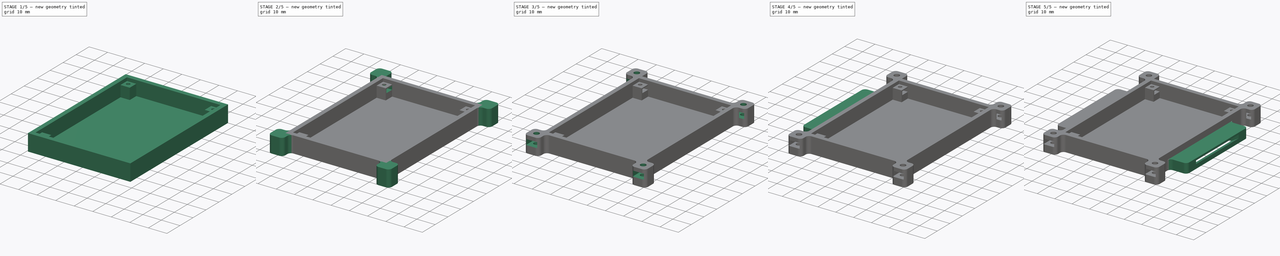
[diagram: build sequence overview — one tinted view per stage of 5, left to right]
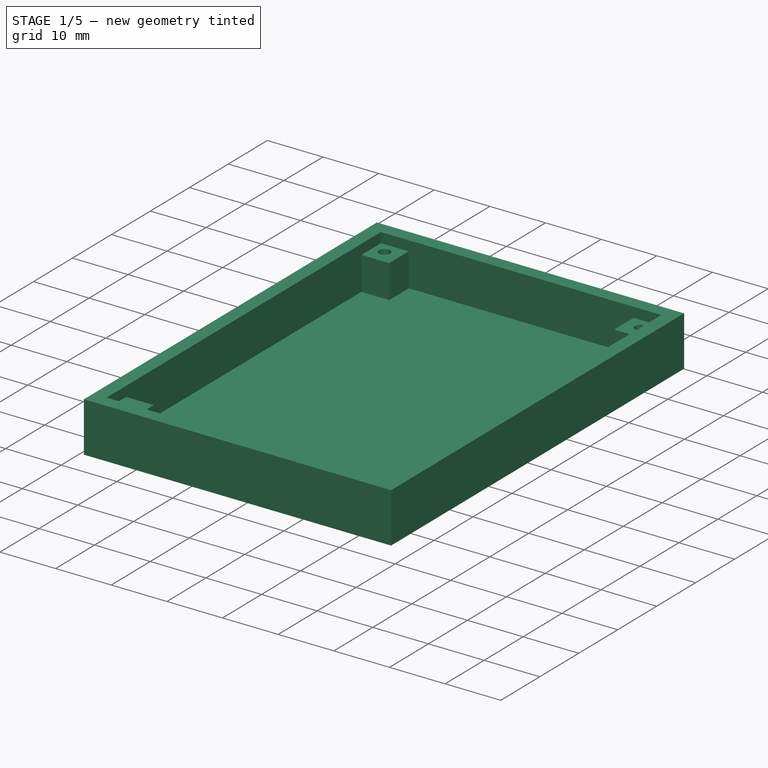
[diagram: stage 1 of 5 — iso view after this stage's code; geometry added in this stage tinted green]
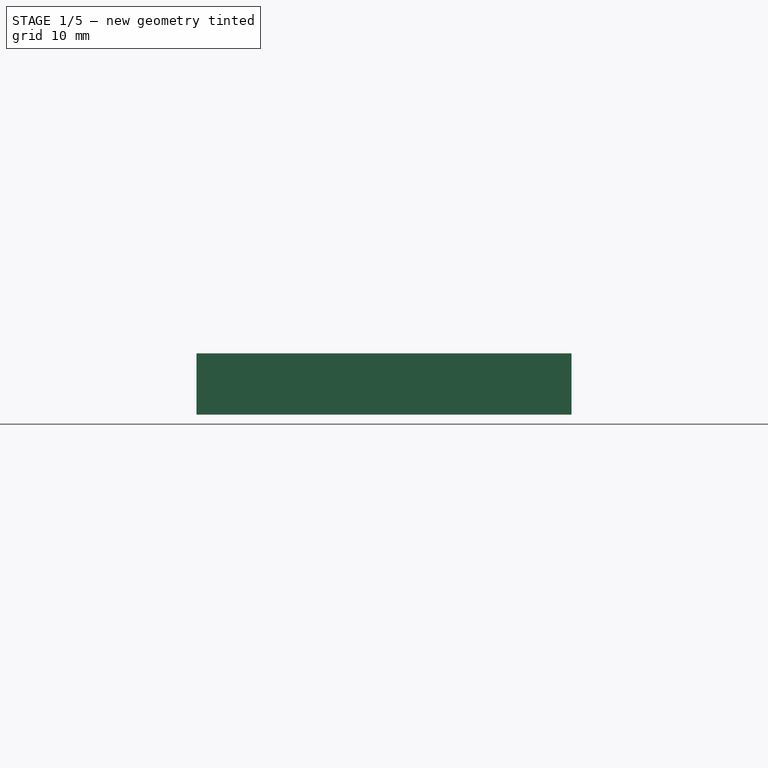
[diagram: stage 1 of 5 — front view after this stage's code; geometry added in this stage tinted green]
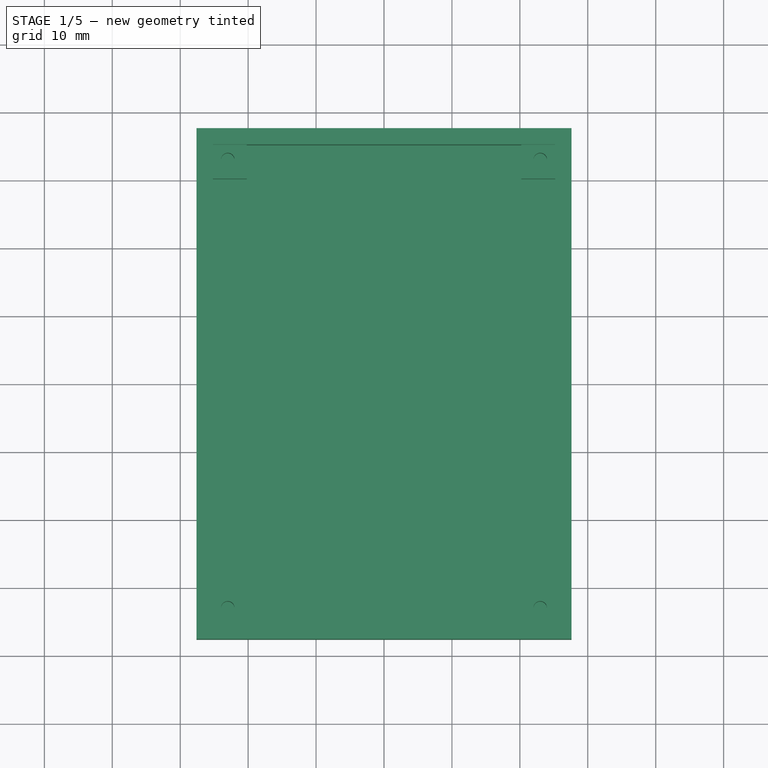
[diagram: stage 1 of 5 — top view after this stage's code; geometry added in this stage tinted green]
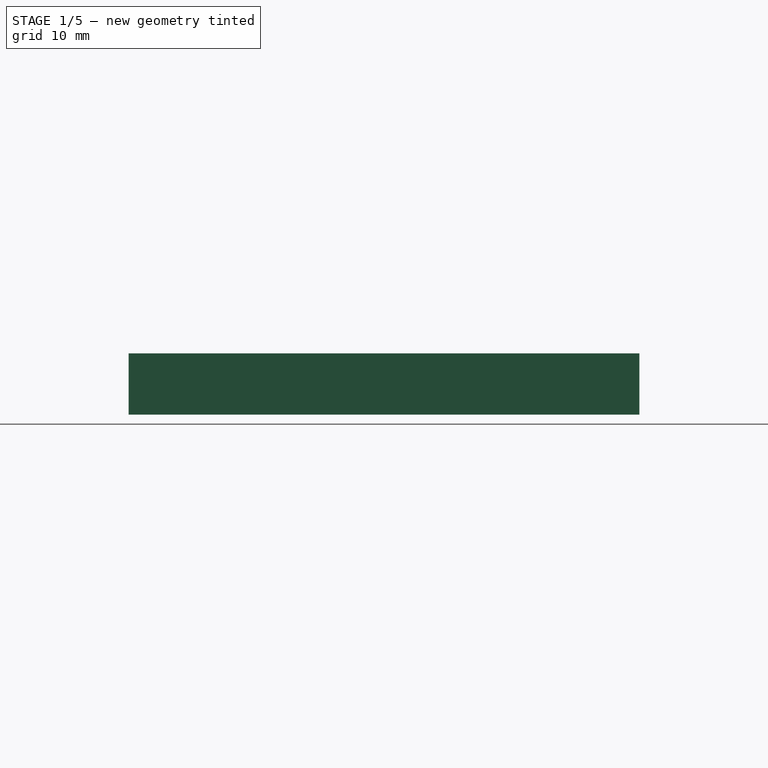
[diagram: stage 1 of 5 — right view after this stage's code; geometry added in this stage tinted green]
FCSTD DOCUMENT  (FreeCAD 0.20R29410 (Git))
Label: baseplate
License: All rights reserved
LicenseURL: http://en.wikipedia.org/wiki/All_rights_reserved
objects: Sketcher::SketchObject×12, PartDesign::Pad×6, PartDesign::Pocket×5, PartDesign::Fillet×3, PartDesign::Mirrored×2, Spreadsheet::Sheet×1, PartDesign::Body×1
note: 43 computed .brp shape members not serialized (recipe doc carries the construction recipe); baked Part::Feature solids carry a one-line shape summary decoded from their .brp

FEATURE [Sketcher::SketchObject] Sketch
  FullyConstrained = true
  MapMode = 5
  Support = -> [XY_Plane]
  expr: Constraints[34] = 50 + Spreadsheet.clc * 2
  expr: Constraints[35] = 70 + Spreadsheet.clc * 2
  expr: Constraints[46] = 50 + 2 * Spreadsheet.clc + 2 * Spreadsheet.thk
  expr: Constraints[47] = 70 + 2 * Spreadsheet.clc + 2 * Spreadsheet.thk
  sketch-geometry (35):
    g0: LineSegment StartX=25 StartY=35 StartZ=0 EndX=25 EndY=-35 EndZ=0
    g1: LineSegment StartX=25 StartY=-35 StartZ=0 EndX=-25 EndY=-35 EndZ=0
    g2: LineSegment StartX=-25 StartY=-35 StartZ=0 EndX=-25 EndY=35 EndZ=0
    g3: LineSegment StartX=-25 StartY=35 StartZ=0 EndX=25 EndY=35 EndZ=0
    g4: GeomPoint X=0 Y=0 Z=0
    g5: Circle CenterX=-23 CenterY=33 CenterZ=0 NormalX=0 NormalY=0 NormalZ=1 AngleXU=0 Radius=1
    g6: Circle CenterX=23 CenterY=33 CenterZ=0 NormalX=0 NormalY=0 NormalZ=1 AngleXU=0 Radius=1
    g7: Circle CenterX=23 CenterY=-33 CenterZ=0 NormalX=0 NormalY=0 NormalZ=1 AngleXU=0 Radius=1
    g8: Circle CenterX=-23 CenterY=-33 CenterZ=0 NormalX=0 NormalY=0 NormalZ=1 AngleXU=0 Radius=1
    g9: LineSegment StartX=-25.2 StartY=-35.2 StartZ=0 EndX=-25.2 EndY=35.2 EndZ=0
    g10: LineSegment StartX=-25.2 StartY=35.2 StartZ=0 EndX=25.2 EndY=35.2 EndZ=0
    g11: LineSegment StartX=25.2 StartY=35.2 StartZ=0 EndX=25.2 EndY=-35.2 EndZ=0
    g12: LineSegment StartX=25.2 StartY=-35.2 StartZ=0 EndX=-25.2 EndY=-35.2 EndZ=0
    g13: GeomPoint X=0 Y=0 Z=0
    g14: LineSegment StartX=-27.6 StartY=37.6 StartZ=0 EndX=-27.6 EndY=-37.6 EndZ=0
    g15: LineSegment StartX=-27.6 StartY=-37.6 StartZ=0 EndX=27.6 EndY=-37.6 EndZ=0
    g16: LineSegment StartX=27.6 StartY=-37.6 StartZ=0 EndX=27.6 EndY=37.6 EndZ=0
    g17: LineSegment StartX=27.6 StartY=37.6 StartZ=0 EndX=-27.6 EndY=37.6 EndZ=0
    g18: GeomPoint X=0 Y=0 Z=0
    g19: LineSegment StartX=25.2 StartY=35.2 StartZ=0 EndX=20.2 EndY=35.2 EndZ=0
    g20: LineSegment StartX=20.2 StartY=35.2 StartZ=0 EndX=20.2 EndY=30.2 EndZ=0
    g21: LineSegment StartX=20.2 StartY=30.2 StartZ=0 EndX=25.2 EndY=30.2 EndZ=0
    g22: LineSegment StartX=25.2 StartY=30.2 StartZ=0 EndX=25.2 EndY=35.2 EndZ=0
    g23: LineSegment StartX=25.2 StartY=-35.2 StartZ=0 EndX=20.2 EndY=-35.2 EndZ=0
    g24: LineSegment StartX=20.2 StartY=-35.2 StartZ=0 EndX=20.2 EndY=-30.2 EndZ=0
    g25: LineSegment StartX=20.2 StartY=-30.2 StartZ=0 EndX=25.2 EndY=-30.2 EndZ=0
    g26: LineSegment StartX=25.2 StartY=-30.2 StartZ=0 EndX=25.2 EndY=-35.2 EndZ=0
    g27: LineSegment StartX=-25.2 StartY=-35.2 StartZ=0 EndX=-20.2 EndY=-35.2 EndZ=0
    g28: LineSegment StartX=-20.2 StartY=-35.2 StartZ=0 EndX=-20.2 EndY=-30.2 EndZ=0
    g29: LineSegment StartX=-20.2 StartY=-30.2 StartZ=0 EndX=-25.2 EndY=-30.2 EndZ=0
    g30: LineSegment StartX=-25.2 StartY=-30.2 StartZ=0 EndX=-25.2 EndY=-35.2 EndZ=0
    g31: LineSegment StartX=-25.2 StartY=35.2 StartZ=0 EndX=-20.2 EndY=35.2 EndZ=0
    g32: LineSegment StartX=-20.2 StartY=35.2 StartZ=0 EndX=-20.2 EndY=30.2 EndZ=0
    g33: LineSegment StartX=-20.2 StartY=30.2 StartZ=0 EndX=-25.2 EndY=30.2 EndZ=0
    g34: LineSegment StartX=-25.2 StartY=30.2 StartZ=0 EndX=-25.2 EndY=35.2 EndZ=0
  constraints (92):
    c: Coincident(g0,g1)
    c: Coincident(g1,g2)
    c: Coincident(g2,g3)
    c: Coincident(g3,g0)
    c: Horizontal(g1)
    c: Horizontal(g3)
    c: Vertical(g0)
    c: Vertical(g2)
    c: Symmetric(g1,g0,g4)
    c: Coincident(g4,g-1)
    c: Diameter(g5) = 2
    c: Equal(g5,g6)
    c: Equal(g6,g7)
    c: Equal(g7,g8)
    c: DistanceX(g2,g5) = 2
    c: DistanceY(g5,g2) = 2
    c: DistanceY(g0,g7) = 2
    c: DistanceX(g7,g0) = 2
    c: Horizontal(g8,g7)
    c: Horizontal(g6,g5)
    c: Vertical(g8,g5)
    c: Vertical(g7,g6)
    c: DistanceX(g3,g3) = 50
    c: DistanceY(g2,g2) = 70
    c: Coincident(g9,g10)
    c: Coincident(g10,g11)
    c: Coincident(g11,g12)
    c: Coincident(g12,g9)
    c: Horizontal(g10)
    c: Horizontal(g12)
    c: Vertical(g9)
    c: Vertical(g11)
    c: Symmetric(g10,g9,g13)
    c: Coincident(g13,g4)
    c: DistanceX(g10,g10) = 50.4
    c: DistanceY(g11,g11) = 70.4
    c: Coincident(g14,g15)
    c: Coincident(g15,g16)
    c: Coincident(g16,g17)
    c: Coincident(g17,g14)
    c: Horizontal(g15)
    c: Horizontal(g17)
    c: Vertical(g14)
    c: Vertical(g16)
    c: Symmetric(g15,g14,g18)
    c: Coincident(g18,g4)
    c: DistanceX(g17,g17) = 55.2
    c: DistanceY(g16,g16) = 75.2
    c: Coincident(g19,g20)
    c: Coincident(g20,g21)
    c: Coincident(g21,g22)
    c: Coincident(g22,g19)
    c: Horizontal(g19)
    c: Horizontal(g21)
    c: Vertical(g20)
    c: Vertical(g22)
    c: Coincident(g19,g10)
    c: DistanceY(g20,g20) = 5
    c: Coincident(g23,g24)
    c: Coincident(g24,g25)
    c: Coincident(g25,g26)
    c: Coincident(g26,g23)
    c: Horizontal(g23)
    c: Horizontal(g25)
    c: Vertical(g24)
    c: Vertical(g26)
    c: Coincident(g23,g11)
    c: Coincident(g27,g28)
    c: Coincident(g28,g29)
    c: Coincident(g29,g30)
    c: Coincident(g30,g27)
    c: Horizontal(g27)
    c: Horizontal(g29)
    c: Vertical(g28)
    c: Vertical(g30)
    c: Coincident(g27,g9)
    c: Coincident(g31,g32)
    c: Coincident(g32,g33)
    c: Coincident(g33,g34)
    c: Coincident(g34,g31)
    c: Horizontal(g31)
    c: Horizontal(g33)
    c: Vertical(g32)
    c: Vertical(g34)
    c: Coincident(g31,g9)
    c: Equal(g21,g20)
    c: Equal(g33,g32)
    c: Equal(g32,g29)
    c: Equal(g29,g28)
    c: Equal(g28,g24)
    c: Equal(g24,g25)
    c: Equal(g32,g21)
FEATURE [Spreadsheet::Sheet] Spreadsheet
  cells = A1=clearance; B1(clc)=0.2; A2=thk; B2(thk)=2.4
FEATURE [PartDesign::Pad] Pad
  Direction = (0,0,1)
  Length = 1.2
  Length2 = 10
  Profile = -> Sketch
  ReferenceAxis = -> Sketch [N_Axis]
  Type = 0
  expr: Length = Spreadsheet.thk / 2
FEATURE [Sketcher::SketchObject] Sketch001
  FullyConstrained = true
  MapMode = 5
  Placement = pos=(0,0,1.2) rot=(0,0,1;0rad)
  Support = -> [Pad]
  expr: Constraints[1] = Sketch.Constraints[10]
  expr: Constraints[24] = Sketch.Constraints[46]
  expr: Constraints[25] = Sketch.Constraints[47]
  expr: Constraints[29] = Sketch.Constraints[57]
  expr: Constraints[50] = Spreadsheet.thk
  expr: Constraints[51] = Spreadsheet.thk
  expr: Constraints[52] = Spreadsheet.thk
  expr: Constraints[53] = Spreadsheet.thk
  expr: Constraints[56] = 2.8mm
  sketch-geometry (23):
    g0: GeomPoint X=0 Y=0 Z=0
    g1: Circle CenterX=-23 CenterY=33 CenterZ=0 NormalX=0 NormalY=0 NormalZ=1 AngleXU=0 Radius=1
    g2: Circle CenterX=23 CenterY=33 CenterZ=0 NormalX=0 NormalY=0 NormalZ=1 AngleXU=0 Radius=1
    g3: Circle CenterX=23 CenterY=-33 CenterZ=0 NormalX=0 NormalY=0 NormalZ=1 AngleXU=0 Radius=1
    g4: Circle CenterX=-23 CenterY=-33 CenterZ=0 NormalX=0 NormalY=0 NormalZ=1 AngleXU=0 Radius=1
    g5: LineSegment StartX=-25.2 StartY=-30.2 StartZ=0 EndX=-25.2 EndY=30.2 EndZ=0
    g6: LineSegment StartX=-20.2 StartY=35.2 StartZ=0 EndX=20.2 EndY=35.2 EndZ=0
    g7: LineSegment StartX=25.2 StartY=30.2 StartZ=0 EndX=25.2 EndY=-30.2 EndZ=0
    g8: LineSegment StartX=20.2 StartY=-35.2 StartZ=0 EndX=-20.2 EndY=-35.2 EndZ=0
    g9: GeomPoint X=0 Y=0 Z=0
    g10: LineSegment StartX=-27.6 StartY=37.6 StartZ=0 EndX=-27.6 EndY=-37.6 EndZ=0
    g11: LineSegment StartX=-27.6 StartY=-37.6 StartZ=0 EndX=27.6 EndY=-37.6 EndZ=0
    g12: LineSegment StartX=27.6 StartY=-37.6 StartZ=0 EndX=27.6 EndY=37.6 EndZ=0
    g13: LineSegment StartX=27.6 StartY=37.6 StartZ=0 EndX=-27.6 EndY=37.6 EndZ=0
    g14: GeomPoint X=0 Y=0 Z=0
    g15: LineSegment StartX=20.2 StartY=35.2 StartZ=0 EndX=20.2 EndY=30.2 EndZ=0
    g16: LineSegment StartX=20.2 StartY=30.2 StartZ=0 EndX=25.2 EndY=30.2 EndZ=0
    g17: LineSegment StartX=20.2 StartY=-35.2 StartZ=0 EndX=20.2 EndY=-30.2 EndZ=0
    g18: LineSegment StartX=20.2 StartY=-30.2 StartZ=0 EndX=25.2 EndY=-30.2 EndZ=0
    g19: LineSegment StartX=-20.2 StartY=-35.2 StartZ=0 EndX=-20.2 EndY=-30.2 EndZ=0
    g20: LineSegment StartX=-20.2 StartY=-30.2 StartZ=0 EndX=-25.2 EndY=-30.2 EndZ=0
    g21: LineSegment StartX=-20.2 StartY=35.2 StartZ=0 EndX=-20.2 EndY=30.2 EndZ=0
    g22: LineSegment StartX=-20.2 StartY=30.2 StartZ=0 EndX=-25.2 EndY=30.2 EndZ=0
  constraints (68):
    c: Coincident(g0,g-1)
    c: Diameter(g1) = 2
    c: Equal(g1,g2)
    c: Equal(g2,g3)
    c: Equal(g3,g4)
    c: Horizontal(g4,g3)
    c: Horizontal(g2,g1)
    c: Vertical(g4,g1)
    c: Vertical(g3,g2)
    c: Horizontal(g6)
    c: Horizontal(g8)
    c: Vertical(g5)
    c: Vertical(g7)
    c: Coincident(g9,g0)
    c: Coincident(g10,g11)
    c: Coincident(g11,g12)
    c: Coincident(g12,g13)
    c: Coincident(g13,g10)
    c: Horizontal(g11)
    c: Horizontal(g13)
    c: Vertical(g10)
    c: Vertical(g12)
    c: Symmetric(g11,g10,g14)
    c: Coincident(g14,g0)
    c: DistanceX(g13,g13) = 55.2
    c: DistanceY(g12,g12) = 75.2
    c: Coincident(g15,g16)
    c: Horizontal(g16)
    c: Vertical(g15)
    c: DistanceY(g15,g15) = 5
    c: Coincident(g17,g18)
    c: Horizontal(g18)
    c: Vertical(g17)
    c: Coincident(g19,g20)
    c: Horizontal(g20)
    c: Vertical(g19)
    c: Coincident(g21,g22)
    c: Horizontal(g22)
    c: Vertical(g21)
    c: Equal(g16,g15)
    c: Equal(g22,g21)
    c: Equal(g21,g20)
    c: Equal(g20,g19)
    c: Equal(g19,g17)
    c: Equal(g17,g18)
    c: Equal(g21,g16)
    c: PointOnObject(g7,g18)
    c: PointOnObject(g5,g20)
    c: PointOnObject(g5,g22)
    c: PointOnObject(g7,g16)
    c: DistanceY(g11,g8) = 2.4
    c: DistanceX(g7,g11) = 2.4
    c: DistanceX(g10,g5) = 2.4
    c: DistanceY(g6,g10) = 2.4
    c: Equal(g6,g8)
    c: Equal(g7,g5)
    c: DistanceX(g6,g2) = 2.8
    c: DistanceY(g15,g2) = 2.8
    c: DistanceY(g8,g4) = 2.2
    c: DistanceX(g5,g4) = 2.2
    c: DistanceX(g10,g21) = 7.4
    c: DistanceX(g17,g11) = 7.4
    c: DistanceY(g21,g10) = 7.4
    c: DistanceX(g6,g12) = 7.4
    c: DistanceX(g10,g19) = 7.4
    c: Coincident(g8,g17)
    c: Coincident(g8,g19)
    c: Coincident(g16,g7)
FEATURE [PartDesign::Pad] Pad001
  BaseFeature = -> Pad
  Direction = (0,0,1)
  Length = 6
  Length2 = 10
  Profile = -> Sketch001
  ReferenceAxis = -> Sketch001 [N_Axis]
  Type = 0
FEATURE [Sketcher::SketchObject] Sketch002
  ExternalGeometry = -> [Pad001]
  FullyConstrained = true
  MapMode = 5
  Placement = pos=(0,0,7.2) rot=(0,0,1;0rad)
  Support = -> [Pad001]
  expr: Constraints[20] = 50 + Spreadsheet.clc * 2
  expr: Constraints[21] = 70 + Spreadsheet.clc * 2
  sketch-geometry (9):
    g0: LineSegment StartX=-27.6 StartY=37.6 StartZ=0 EndX=27.6 EndY=37.6 EndZ=0
    g1: LineSegment StartX=27.6 StartY=37.6 StartZ=0 EndX=27.6 EndY=-37.6 EndZ=0
    g2: LineSegment StartX=27.6 StartY=-37.6 StartZ=0 EndX=-27.6 EndY=-37.6 EndZ=0
    g3: LineSegment StartX=-27.6 StartY=-37.6 StartZ=0 EndX=-27.6 EndY=37.6 EndZ=0
    g4: LineSegment StartX=-25.2 StartY=35.2 StartZ=0 EndX=-25.2 EndY=-35.2 EndZ=0
    g5: LineSegment StartX=-25.2 StartY=-35.2 StartZ=0 EndX=25.2 EndY=-35.2 EndZ=0
    g6: LineSegment StartX=25.2 StartY=-35.2 StartZ=0 EndX=25.2 EndY=35.2 EndZ=0
    g7: LineSegment StartX=25.2 StartY=35.2 StartZ=0 EndX=-25.2 EndY=35.2 EndZ=0
    g8: GeomPoint X=0 Y=0 Z=0
  constraints (22):
    c: Coincident(g0,g1)
    c: Coincident(g1,g2)
    c: Coincident(g2,g3)
    c: Coincident(g3,g0)
    c: Horizontal(g0)
    c: Horizontal(g2)
    c: Vertical(g1)
    c: Vertical(g3)
    c: Coincident(g0,g-3)
    c: Coincident(g1,g-4)
    c: Coincident(g4,g5)
    c: Coincident(g5,g6)
    c: Coincident(g6,g7)
    c: Coincident(g7,g4)
    c: Horizontal(g5)
    c: Horizontal(g7)
    c: Vertical(g4)
    c: Vertical(g6)
    c: Symmetric(g5,g4,g8)
    c: Coincident(g8,g-1)
    c: DistanceX(g7,g7) = 50.4
    c: DistanceY(g6,g6) = 70.4
FEATURE [PartDesign::Pad] Pad002
  BaseFeature = -> Pad001
  Direction = (0,0,1)
  Length = 1.8
  Length2 = 10
  Profile = -> Sketch002
  ReferenceAxis = -> Sketch002 [N_Axis]
  Type = 0
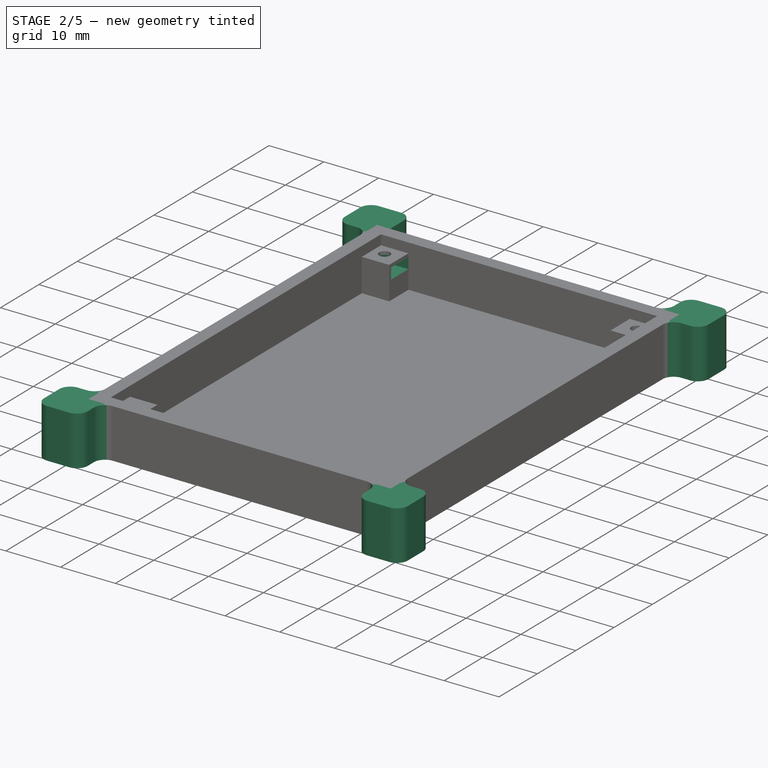
[diagram: stage 2 of 5 — iso view after this stage's code; geometry added in this stage tinted green]
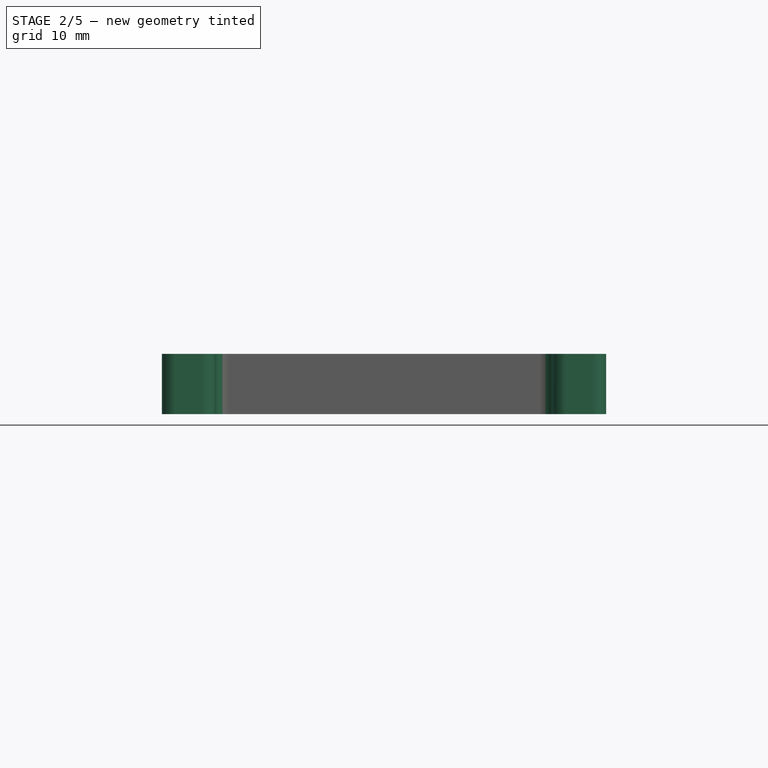
[diagram: stage 2 of 5 — front view after this stage's code; geometry added in this stage tinted green]
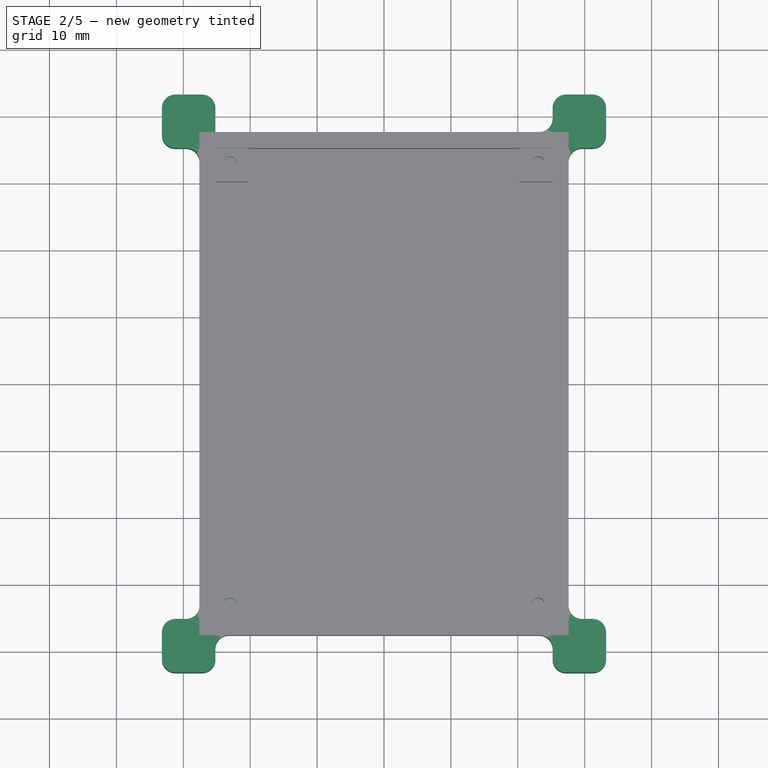
[diagram: stage 2 of 5 — top view after this stage's code; geometry added in this stage tinted green]
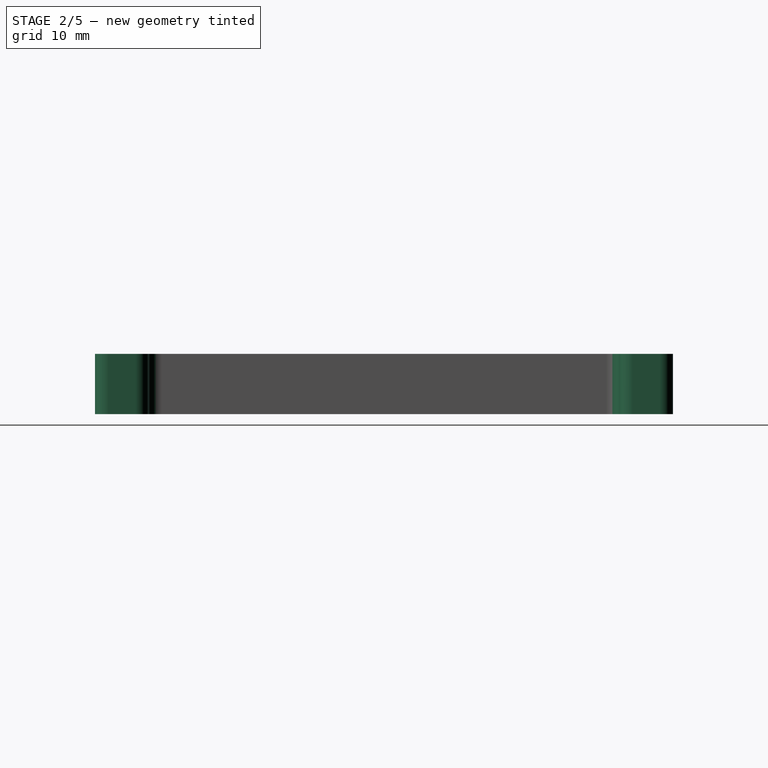
[diagram: stage 2 of 5 — right view after this stage's code; geometry added in this stage tinted green]
FEATURE [Sketcher::SketchObject] Sketch003
  ExternalGeometry = -> [Pad002]
  FullyConstrained = true
  MapMode = 5
  Placement = pos=(0,0,9) rot=(0,0,1;0rad)
  Support = -> [Pad002]
  sketch-geometry (16):
    g0: LineSegment StartX=25.2 StartY=-35.2 StartZ=0 EndX=33.2 EndY=-35.2 EndZ=0
    g1: LineSegment StartX=33.2 StartY=-35.2 StartZ=0 EndX=33.2 EndY=-43.2 EndZ=0
    g2: LineSegment StartX=33.2 StartY=-43.2 StartZ=0 EndX=25.2 EndY=-43.2 EndZ=0
    g3: LineSegment StartX=25.2 StartY=-43.2 StartZ=0 EndX=25.2 EndY=-35.2 EndZ=0
    g4: LineSegment StartX=-25.2 StartY=-35.2 StartZ=0 EndX=-33.2 EndY=-35.2 EndZ=0
    g5: LineSegment StartX=-33.2 StartY=-35.2 StartZ=0 EndX=-33.2 EndY=-43.2 EndZ=0
    g6: LineSegment StartX=-33.2 StartY=-43.2 StartZ=0 EndX=-25.2 EndY=-43.2 EndZ=0
    g7: LineSegment StartX=-25.2 StartY=-43.2 StartZ=0 EndX=-25.2 EndY=-35.2 EndZ=0
    g8: LineSegment StartX=-25.2 StartY=35.2 StartZ=0 EndX=-33.2 EndY=35.2 EndZ=0
    g9: LineSegment StartX=-33.2 StartY=35.2 StartZ=0 EndX=-33.2 EndY=43.2 EndZ=0
    g10: LineSegment StartX=-33.2 StartY=43.2 StartZ=0 EndX=-25.2 EndY=43.2 EndZ=0
    g11: LineSegment StartX=-25.2 StartY=43.2 StartZ=0 EndX=-25.2 EndY=35.2 EndZ=0
    g12: LineSegment StartX=25.2 StartY=35.2 StartZ=0 EndX=33.2 EndY=35.2 EndZ=0
    g13: LineSegment StartX=33.2 StartY=35.2 StartZ=0 EndX=33.2 EndY=43.2 EndZ=0
    g14: LineSegment StartX=33.2 StartY=43.2 StartZ=0 EndX=25.2 EndY=43.2 EndZ=0
    g15: LineSegment StartX=25.2 StartY=43.2 StartZ=0 EndX=25.2 EndY=35.2 EndZ=0
  constraints (44):
    c: Coincident(g0,g1)
    c: Coincident(g1,g2)
    c: Coincident(g2,g3)
    c: Coincident(g3,g0)
    c: Horizontal(g0)
    c: Horizontal(g2)
    c: Vertical(g1)
    c: Vertical(g3)
    c: Coincident(g0,g-6)
    c: Coincident(g4,g5)
    c: Coincident(g5,g6)
    c: Coincident(g6,g7)
    c: Coincident(g7,g4)
    c: Horizontal(g4)
    c: Horizontal(g6)
    c: Vertical(g5)
    c: Vertical(g7)
    c: Coincident(g4,g-5)
    c: Coincident(g8,g9)
    c: Coincident(g9,g10)
    c: Coincident(g10,g11)
    c: Coincident(g11,g8)
    c: Horizontal(g8)
    c: Horizontal(g10)
    c: Vertical(g9)
    c: Vertical(g11)
    c: Coincident(g8,g-4)
    c: Coincident(g12,g13)
    c: Coincident(g13,g14)
    c: Coincident(g14,g15)
    c: Coincident(g15,g12)
    c: Horizontal(g12)
    c: Horizontal(g14)
    c: Vertical(g13)
    c: Vertical(g15)
    c: Coincident(g12,g-3)
    c: Equal(g10,g9)
    c: Equal(g9,g14)
    c: Equal(g14,g13)
    c: Equal(g13,g1)
    c: Equal(g1,g2)
    c: Equal(g2,g6)
    c: Equal(g6,g5)
    c: DistanceY(g13,g13) = 8
FEATURE [PartDesign::Pad] Pad003
  BaseFeature = -> Pad002
  Direction = (0,0,1)
  Length = 10
  Length2 = 10
  Profile = -> Sketch003
  ReferenceAxis = -> Sketch003 [N_Axis]
  Reversed = true
  Type = 3
  UpToFace = -> Pad002 [Face4]
FEATURE [PartDesign::Fillet] Fillet
  Base = -> Pad003 [Edge79,Edge78,Edge41,Edge21,Edge20,Edge27,Edge51,Edge53,Edge33,Edge60,Edge102,Edge65,Edge67,Edge66,Edge71,Edge69,Edge73,Edge38,Edge108,Edge80,Edge84,Edge82,Edge43,Edge86,Edge114,Edge91,Edge54,Edge57,Edge46,Edge30,Edge29,Edge28]
  BaseFeature = -> Pad003
  Radius = 2
  SupportTransform = false
  UseAllEdges = false
  expr: Radius = 2
FEATURE [Sketcher::SketchObject] Sketch004
  ExternalGeometry = -> [Fillet]
  FullyConstrained = true
  MapMode = 5
  Placement = pos=(-20.2,0,0) rot=(0.57735,0.57735,0.57735;2.0944rad)
  Support = -> [Fillet]
  sketch-geometry (8):
    g0: LineSegment StartX=30.7 StartY=6.6 StartZ=0 EndX=35.2 EndY=6.6 EndZ=0
    g1: LineSegment StartX=35.2 StartY=6.6 StartZ=0 EndX=35.2 EndY=4.6 EndZ=0
    g2: LineSegment StartX=35.2 StartY=4.6 StartZ=0 EndX=30.7 EndY=4.6 EndZ=0
    g3: LineSegment StartX=30.7 StartY=4.6 StartZ=0 EndX=30.7 EndY=6.6 EndZ=0
    g4: LineSegment StartX=-30.7 StartY=6.6 StartZ=0 EndX=-35.2 EndY=6.6 EndZ=0
    g5: LineSegment StartX=-35.2 StartY=6.6 StartZ=0 EndX=-35.2 EndY=4.6 EndZ=0
    g6: LineSegment StartX=-35.2 StartY=4.6 StartZ=0 EndX=-30.7 EndY=4.6 EndZ=0
    g7: LineSegment StartX=-30.7 StartY=4.6 StartZ=0 EndX=-30.7 EndY=6.6 EndZ=0
  constraints (24):
    c: Coincident(g0,g1)
    c: Coincident(g1,g2)
    c: Coincident(g2,g3)
    c: Coincident(g3,g0)
    c: Horizontal(g0)
    c: Horizontal(g2)
    c: Vertical(g1)
    c: Vertical(g3)
    c: DistanceY(g3,g3) = 2
    c: DistanceX(g0,g0) = 4.5
    c: DistanceX(g-3,g0) = 0.5
    c: Coincident(g4,g5)
    c: Coincident(g5,g6)
    c: Coincident(g6,g7)
    c: Coincident(g7,g4)
    c: Horizontal(g4)
    c: Horizontal(g6)
    c: Vertical(g5)
    c: Vertical(g7)
    c: DistanceX(g4,g4) = 4.5
    c: DistanceX(g4,g-4) = 0.5
    c: DistanceY(g7,g7) = 2
    c: PointOnObject(g2,g6)
    c: DistanceY(g4,g-4) = 0.6
FEATURE [PartDesign::Pocket] Pocket
  BaseFeature = -> Fillet
  Direction = (-1,0,0)
  Length = 0
  Length2 = 5
  Profile = -> Sketch004
  ReferenceAxis = -> Sketch004 [N_Axis]
  Type = 3
  UpToFace = -> Fillet [Face85]
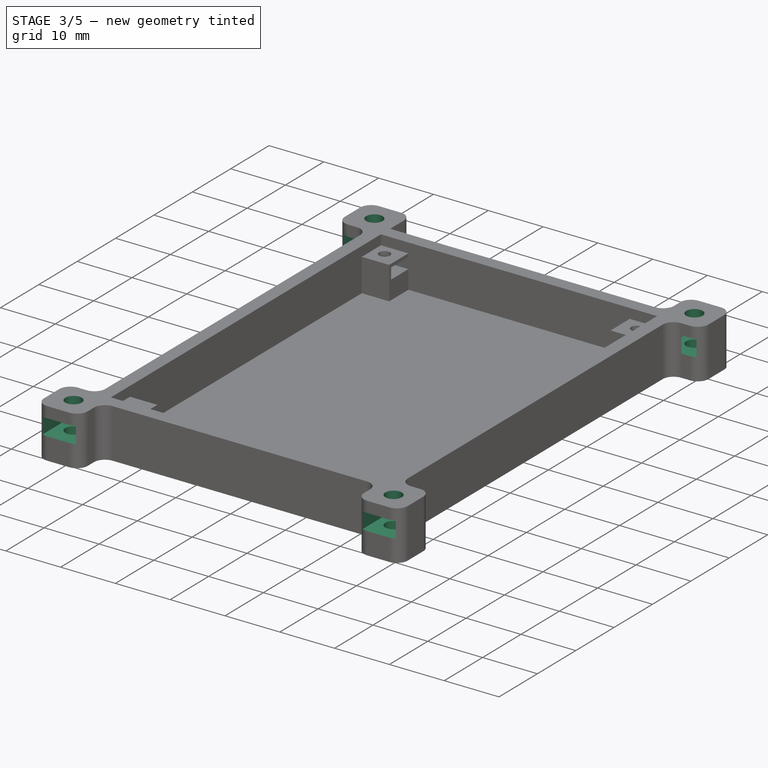
[diagram: stage 3 of 5 — iso view after this stage's code; geometry added in this stage tinted green]
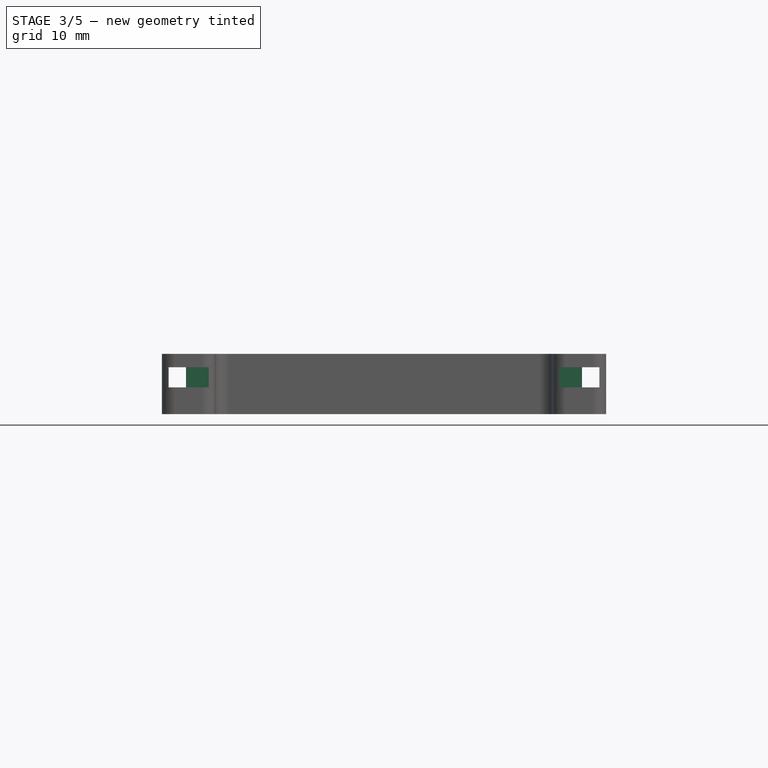
[diagram: stage 3 of 5 — front view after this stage's code; geometry added in this stage tinted green]
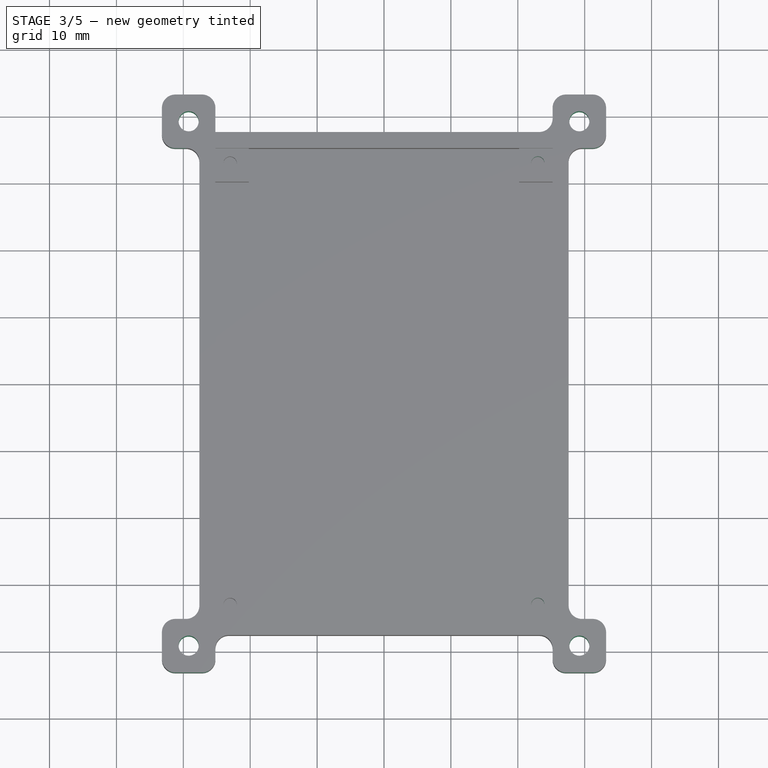
[diagram: stage 3 of 5 — top view after this stage's code; geometry added in this stage tinted green]
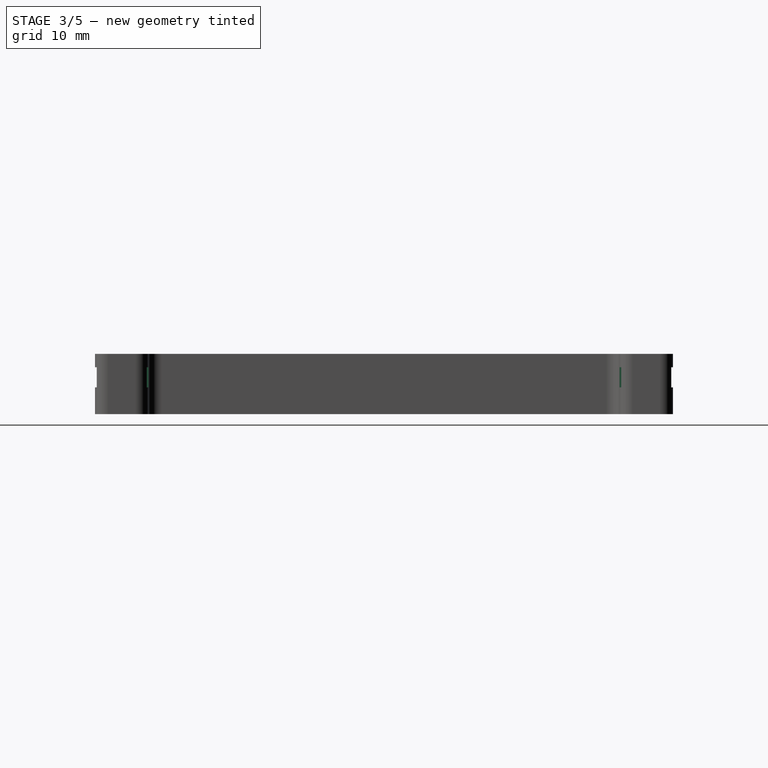
[diagram: stage 3 of 5 — right view after this stage's code; geometry added in this stage tinted green]
FEATURE [PartDesign::Mirrored] Mirrored
  BaseFeature = -> Pocket
  MirrorPlane = -> YZ_Plane
  Originals = -> [Pocket]
FEATURE [Sketcher::SketchObject] Sketch005
  FullyConstrained = true
  MapMode = 5
  Placement = pos=(0,-43.2,0) rot=(1,0,0;1.5708rad)
  Support = -> [Mirrored]
FEATURE [Sketcher::SketchObject] Sketch006
  ExternalGeometry = -> [Mirrored]
  FullyConstrained = false
  MapMode = 5
  Placement = pos=(0,0,9) rot=(0,0,1;0rad)
  Support = -> [Mirrored]
  sketch-geometry (8):
    g0: Circle CenterX=-29.2 CenterY=39.2 CenterZ=0 NormalX=0 NormalY=0 NormalZ=1 AngleXU=0 Radius=1.5
    g1: Circle CenterX=29.2 CenterY=39.2 CenterZ=0 NormalX=0 NormalY=0 NormalZ=1 AngleXU=0 Radius=1.5
    g2: Circle CenterX=29.2 CenterY=-39.2 CenterZ=0 NormalX=0 NormalY=0 NormalZ=1 AngleXU=0 Radius=1.5
    g3: Circle CenterX=-29.2 CenterY=-39.2 CenterZ=0 NormalX=0 NormalY=0 NormalZ=1 AngleXU=0 Radius=1.5
    g4: LineSegment StartX=29.2 StartY=-39.2 StartZ=0 EndX=29.2 EndY=-42.1749 EndZ=0
    g5: LineSegment StartX=29.2 StartY=-39.2 StartZ=0 EndX=32.2991 EndY=-39.2 EndZ=0
    g6: LineSegment StartX=-29.2 StartY=39.2 StartZ=0 EndX=-29.2 EndY=42.4001 EndZ=0
    g7: LineSegment StartX=-29.2 StartY=39.2 StartZ=0 EndX=-32.1259 EndY=39.2 EndZ=0
  constraints (16):
    c: Equal(g0,g1)
    c: Equal(g1,g2)
    c: Equal(g2,g3)
    c: Diameter(g0) = 3
    c: Coincident(g4,g2)
    c: Symmetric(g-5,g-5,g4)
    c: Symmetric(g-6,g-6,g5)
    c: Coincident(g2,g5)
    c: Coincident(g6,g0)
    c: Coincident(g7,g0)
    c: Symmetric(g-3,g-3,g6)
    c: Symmetric(g-4,g-4,g7)
    c: Horizontal(g1,g0)
    c: Horizontal(g2,g3)
    c: Vertical(g3,g0)
    c: Vertical(g1,g2)
FEATURE [PartDesign::Pocket] Pocket001
  BaseFeature = -> Mirrored
  Direction = (0,0,-1)
  Length = 5
  Length2 = 5
  Profile = -> Sketch006
  ReferenceAxis = -> Sketch006 [N_Axis]
  Type = 1
FEATURE [Sketcher::SketchObject] Sketch007
  ExternalGeometry = -> [Pocket001]
  FullyConstrained = false
  MapMode = 5
  Placement = pos=(0,-43.2,0) rot=(1,0,0;1.5708rad)
  Support = -> [Pocket001]
  sketch-geometry (12):
    g0: LineSegment StartX=-26.2 StartY=7 StartZ=0 EndX=-26.2 EndY=4 EndZ=0
    g1: LineSegment StartX=-26.2 StartY=4 StartZ=0 EndX=-32.2 EndY=4 EndZ=0
    g2: LineSegment StartX=-32.2 StartY=4 StartZ=0 EndX=-32.2 EndY=7 EndZ=0
    g3: LineSegment StartX=-32.2 StartY=7 StartZ=0 EndX=-26.2 EndY=7 EndZ=0
    g4: GeomPoint X=-29.2 Y=5.5 Z=0
    g5: LineSegment StartX=-29.2 StartY=4 StartZ=0 EndX=-29.2 EndY=1.21091 EndZ=0
    g6: LineSegment StartX=26.2 StartY=7 StartZ=0 EndX=26.2 EndY=4 EndZ=0
    g7: LineSegment StartX=26.2 StartY=4 StartZ=0 EndX=32.2 EndY=4 EndZ=0
    g8: LineSegment StartX=32.2 StartY=4 StartZ=0 EndX=32.2 EndY=7 EndZ=0
    g9: LineSegment StartX=32.2 StartY=7 StartZ=0 EndX=26.2 EndY=7 EndZ=0
    g10: GeomPoint X=29.2 Y=5.5 Z=0
    g11: LineSegment StartX=29.2 StartY=4 StartZ=0 EndX=29.2 EndY=1.80073 EndZ=0
  constraints (28):
    c: Coincident(g0,g1)
    c: Coincident(g1,g2)
    c: Coincident(g2,g3)
    c: Coincident(g3,g0)
    c: Horizontal(g3)
    c: Vertical(g0)
    c: Vertical(g2)
    c: Symmetric(g1,g0,g4)
    c: DistanceX(g1,g1) = 6
    c: DistanceY(g2,g2) = 3
    c: PointOnObject(g5,g1)
    c: Symmetric(g0,g1,g5)
    c: Symmetric(g-3,g-3,g5)
    c: DistanceY(g2,g-3) = 2
    c: Coincident(g6,g7)
    c: Coincident(g7,g8)
    c: Coincident(g8,g9)
    c: Coincident(g9,g6)
    c: Horizontal(g9)
    c: Vertical(g6)
    c: Vertical(g8)
    c: Symmetric(g7,g6,g10)
    c: PointOnObject(g0,g9)
    c: Equal(g0,g6)
    c: Equal(g7,g1)
    c: PointOnObject(g11,g7)
    c: Symmetric(g-4,g-4,g11)
    c: Symmetric(g7,g6,g11)
FEATURE [PartDesign::Pocket] Pocket002
  BaseFeature = -> Pocket001
  Direction = (0,1,-2e-16)
  Length = 0
  Length2 = 5
  Profile = -> Sketch007
  ReferenceAxis = -> Sketch007 [N_Axis]
  Type = 3
  UpToFace = -> Pocket001 [Face51]
FEATURE [PartDesign::Mirrored] Mirrored001
  BaseFeature = -> Pocket002
  MirrorPlane = -> XZ_Plane
  Originals = -> [Pocket002]
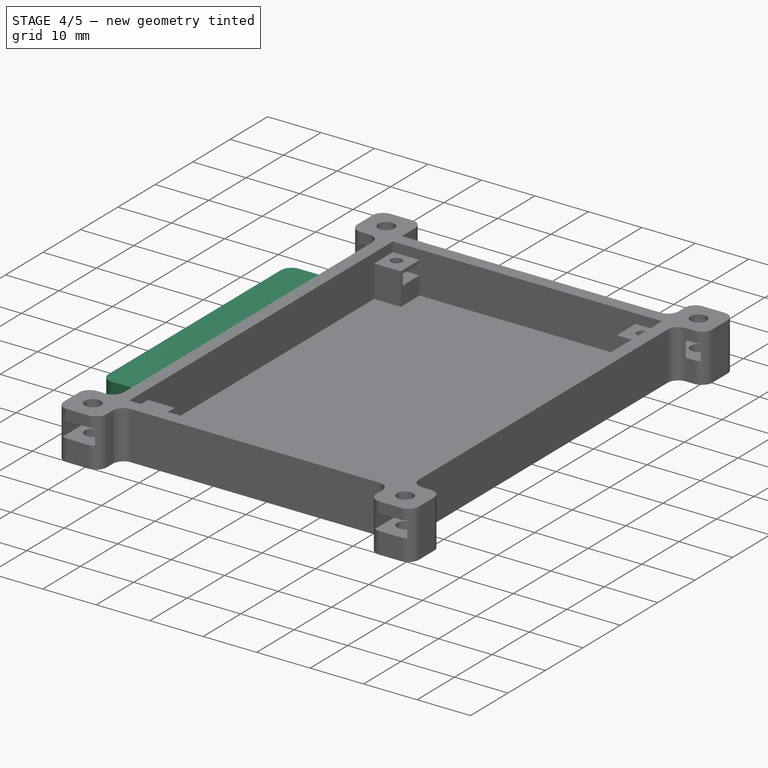
[diagram: stage 4 of 5 — iso view after this stage's code; geometry added in this stage tinted green]
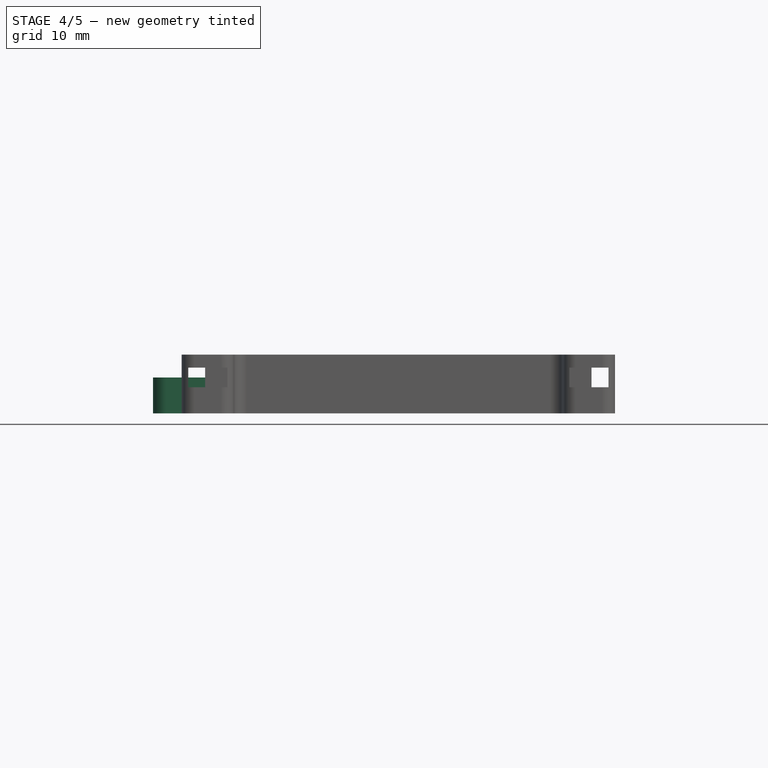
[diagram: stage 4 of 5 — front view after this stage's code; geometry added in this stage tinted green]
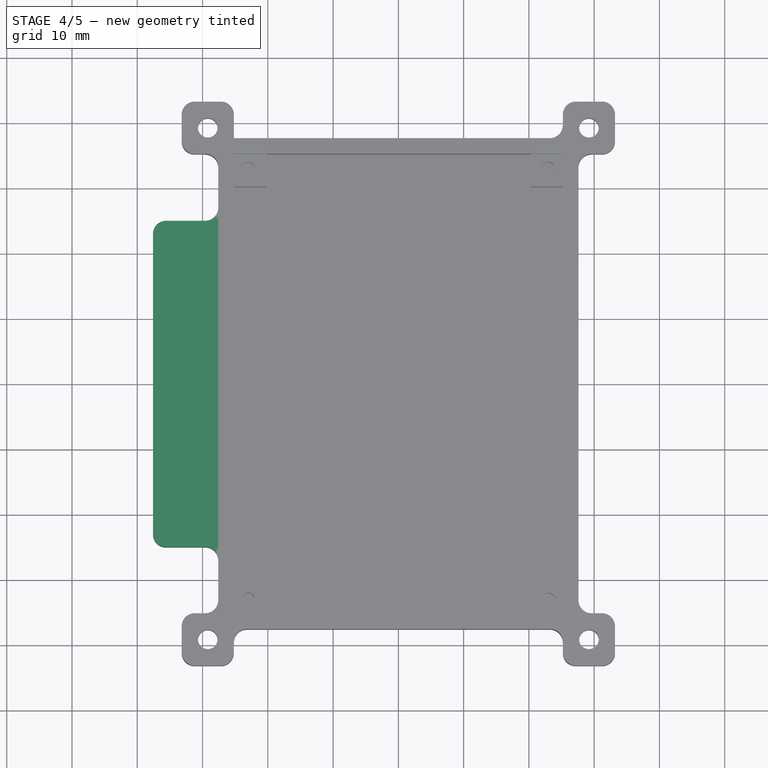
[diagram: stage 4 of 5 — top view after this stage's code; geometry added in this stage tinted green]
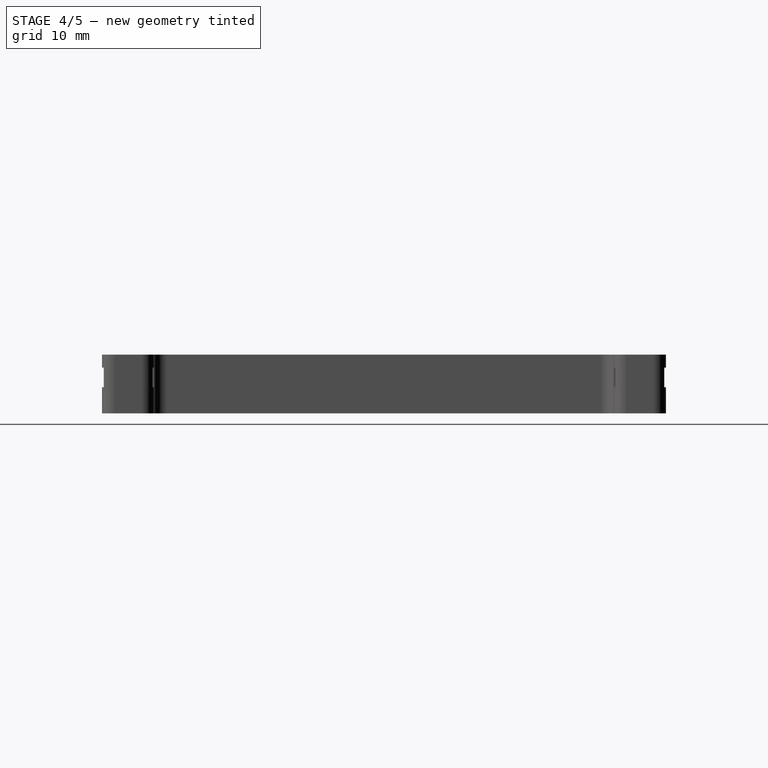
[diagram: stage 4 of 5 — right view after this stage's code; geometry added in this stage tinted green]
FEATURE [Sketcher::SketchObject] Sketch008
  FullyConstrained = true
  MapMode = 5
  Placement = pos=(-27.6,0,0) rot=(0.57735,-0.57735,-0.57735;2.0944rad)
  Support = -> [Mirrored001]
  sketch-geometry (5):
    g0: LineSegment StartX=-25 StartY=5.5 StartZ=0 EndX=-25 EndY=0 EndZ=0
    g1: LineSegment StartX=-25 StartY=0 StartZ=0 EndX=25 EndY=0 EndZ=0
    g2: LineSegment StartX=25 StartY=0 StartZ=0 EndX=25 EndY=5.5 EndZ=0
    g3: LineSegment StartX=25 StartY=5.5 StartZ=0 EndX=-25 EndY=5.5 EndZ=0
    g4: GeomPoint X=0 Y=2.75 Z=0
  constraints (13):
    c: Coincident(g0,g1)
    c: Coincident(g1,g2)
    c: Coincident(g2,g3)
    c: Coincident(g3,g0)
    c: Horizontal(g1)
    c: Horizontal(g3)
    c: Vertical(g0)
    c: Vertical(g2)
    c: Symmetric(g1,g0,g4)
    c: PointOnObject(g4,g-2)
    c: PointOnObject(g1,g-1)
    c: DistanceY(g2,g2) = 5.5
    c: DistanceX(g3,g3) = 50
FEATURE [PartDesign::Pad] Pad004
  BaseFeature = -> Mirrored001
  Direction = (-1,0,0)
  Length = 10
  Length2 = 10
  Profile = -> Sketch008
  ReferenceAxis = -> Sketch008 [N_Axis]
  Type = 0
FEATURE [Sketcher::SketchObject] Sketch009
  ExternalGeometry = -> [Pad004]
  FullyConstrained = false
  MapMode = 5
  Placement = pos=(0,0,0) rot=(1,0,0;1.5708rad)
  Support = -> [XZ_Plane]
  sketch-geometry (7):
    g0: LineSegment StartX=-37.6 StartY=-5.3e-15 StartZ=0 EndX=-27.6 EndY=-5.6e-15 EndZ=0
    g1: LineSegment StartX=-37.6 StartY=5.5 StartZ=0 EndX=-37.6 EndY=-5.3e-15 EndZ=0
    g2: LineSegment StartX=-37.6 StartY=2.47927 StartZ=0 EndX=-33.3058 EndY=-5.3e-15 EndZ=0
    g3: LineSegment StartX=-37.6 StartY=4.5 StartZ=0 EndX=-29.8058 EndY=-5.3e-15 EndZ=0
    g4: LineSegment StartX=-35.1293 StartY=1.05284 StartZ=0 EndX=-34.2543 EndY=2.56839 EndZ=0
    g5: LineSegment StartX=-37.6 StartY=4.5 StartZ=0 EndX=-37.6 EndY=2.47927 EndZ=0
    g6: LineSegment StartX=-33.3058 StartY=-5.3e-15 StartZ=0 EndX=-29.8058 EndY=-5.3e-15 EndZ=0
  constraints (20):
    c: Coincident(g0,g-3)
    c: Coincident(g1,g-4)
    c: Coincident(g1,g0)
    c: Vertical(g1)
    c: PointOnObject(g2,g1)
    c: PointOnObject(g2,g0)
    c: PointOnObject(g3,g1)
    c: PointOnObject(g3,g0)
    c: Parallel(g2,g3)
    c: PointOnObject(g4,g2)
    c: PointOnObject(g4,g3)
    c: Perpendicular(g3,g4)
    c: Distance(g4) = 1.75
    c: Coincident(g5,g3)
    c: Coincident(g5,g2)
    c: Coincident(g6,g2)
    c: Coincident(g6,g3)
    c: Horizontal(g6)
    c: DistanceY(g3,g1) = 1
    c: Angle(g3,g6) = 0.523599
FEATURE [PartDesign::Pocket] Pocket003
  BaseFeature = -> Pad004
  Direction = (0,1,2e-16)
  Length = 35
  Length2 = 5
  Midplane = true
  Profile = -> Sketch009
  ReferenceAxis = -> Sketch009 [N_Axis]
  Type = 0
FEATURE [PartDesign::Fillet] Fillet001
  Base = -> Pocket003 [Edge172,Edge111,Edge174,Edge122,Edge212,Edge210]
  BaseFeature = -> Pocket003
  Radius = 2
  SupportTransform = false
  UseAllEdges = false
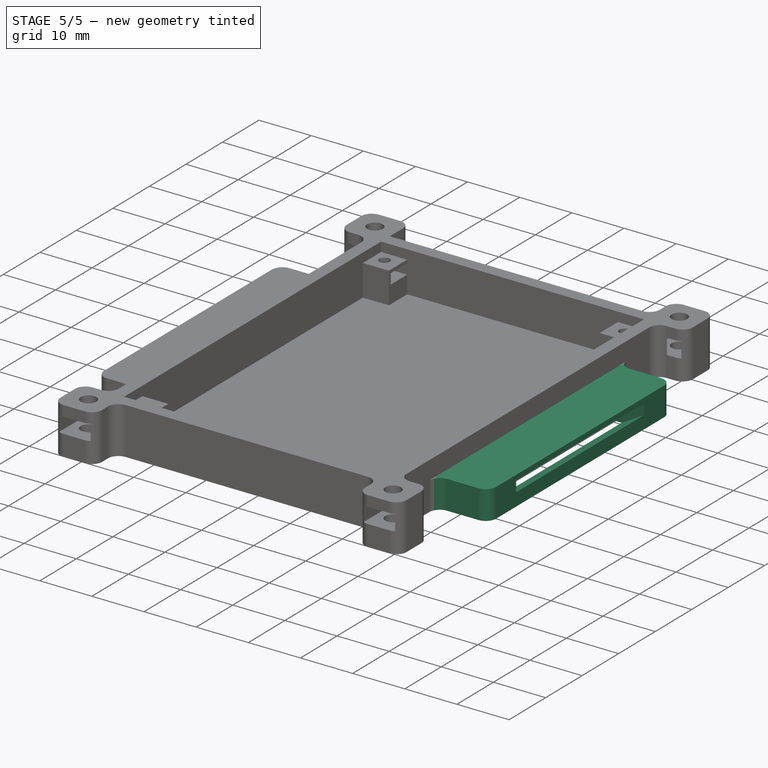
[diagram: stage 5 of 5 — iso view after this stage's code; geometry added in this stage tinted green]
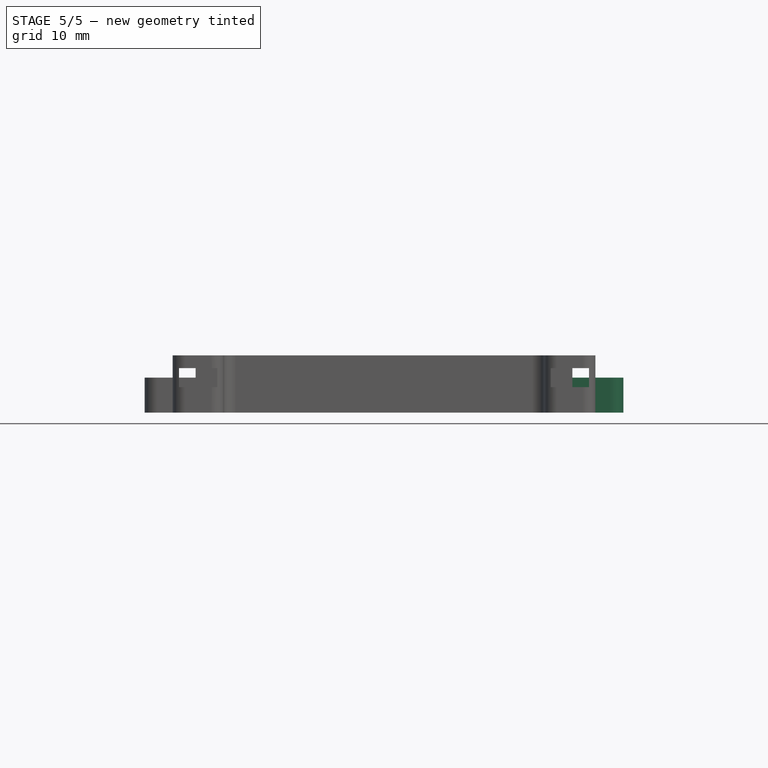
[diagram: stage 5 of 5 — front view after this stage's code; geometry added in this stage tinted green]
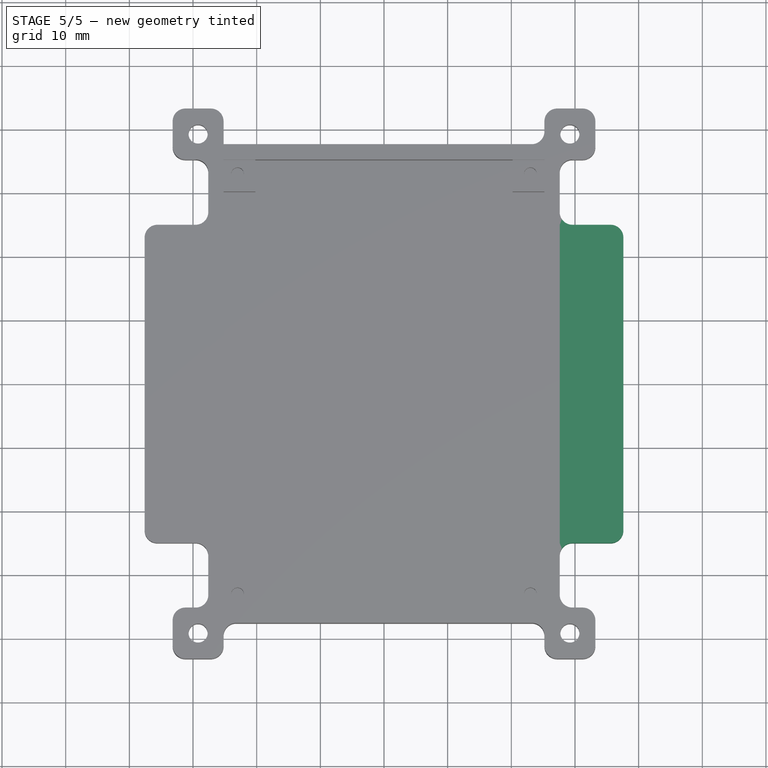
[diagram: stage 5 of 5 — top view after this stage's code; geometry added in this stage tinted green]
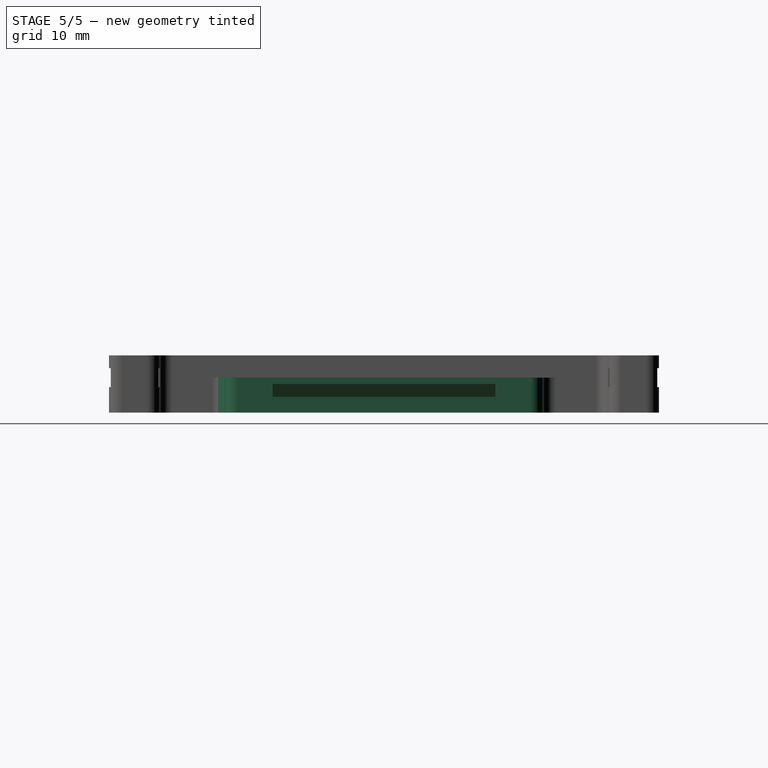
[diagram: stage 5 of 5 — right view after this stage's code; geometry added in this stage tinted green]
FEATURE [Sketcher::SketchObject] Sketch010
  FullyConstrained = true
  MapMode = 5
  Placement = pos=(27.6,0,0) rot=(0.57735,0.57735,0.57735;2.0944rad)
  Support = -> [Fillet001]
  sketch-geometry (5):
    g0: LineSegment StartX=-25 StartY=5.5 StartZ=0 EndX=-25 EndY=0 EndZ=0
    g1: LineSegment StartX=-25 StartY=0 StartZ=0 EndX=25 EndY=0 EndZ=0
    g2: LineSegment StartX=25 StartY=0 StartZ=0 EndX=25 EndY=5.5 EndZ=0
    g3: LineSegment StartX=25 StartY=5.5 StartZ=0 EndX=-25 EndY=5.5 EndZ=0
    g4: GeomPoint X=0 Y=2.75 Z=0
  constraints (13):
    c: Coincident(g0,g1)
    c: Coincident(g1,g2)
    c: Coincident(g2,g3)
    c: Coincident(g3,g0)
    c: Horizontal(g1)
    c: Horizontal(g3)
    c: Vertical(g0)
    c: Vertical(g2)
    c: Symmetric(g1,g0,g4)
    c: PointOnObject(g4,g-2)
    c: DistanceY(g2,g2) = 5.5
    c: DistanceX(g3,g3) = 50
    c: PointOnObject(g1,g-1)
FEATURE [PartDesign::Pad] Pad005
  BaseFeature = -> Fillet001
  Direction = (1,0,0)
  Length = 10
  Length2 = 10
  Profile = -> Sketch010
  ReferenceAxis = -> Sketch010 [N_Axis]
  Type = 0
FEATURE [Sketcher::SketchObject] Sketch011
  ExternalGeometry = -> [Pad005]
  FullyConstrained = false
  MapMode = 5
  Placement = pos=(0,0,0) rot=(1,0,0;1.5708rad)
  Support = -> [XZ_Plane]
  sketch-geometry (7):
    g0: LineSegment StartX=27.6 StartY=-5.6e-15 StartZ=0 EndX=37.6 EndY=-5.6e-15 EndZ=0
    g1: LineSegment StartX=37.6 StartY=-5.6e-15 StartZ=0 EndX=37.6 EndY=5.5 EndZ=0
    g2: LineSegment StartX=37.6 StartY=4.5 StartZ=0 EndX=29.8058 EndY=-5.3e-15 EndZ=0
    g3: LineSegment StartX=37.6 StartY=2.47927 StartZ=0 EndX=33.3058 EndY=-5.3e-15 EndZ=0
    g4: LineSegment StartX=34.6187 StartY=0.758013 StartZ=0 EndX=33.7437 EndY=2.27356 EndZ=0
    g5: LineSegment StartX=37.6 StartY=4.5 StartZ=0 EndX=37.6 EndY=2.47927 EndZ=0
    g6: LineSegment StartX=33.3058 StartY=-5.6e-15 StartZ=0 EndX=29.8058 EndY=-5.6e-15 EndZ=0
  constraints (19):
    c: Coincident(g0,g-4)
    c: Coincident(g0,g-5)
    c: Coincident(g1,g0)
    c: Coincident(g1,g-3)
    c: PointOnObject(g2,g1)
    c: PointOnObject(g2,g0)
    c: PointOnObject(g3,g1)
    c: PointOnObject(g3,g0)
    c: Parallel(g2,g3)
    c: PointOnObject(g4,g3)
    c: PointOnObject(g4,g2)
    c: Perpendicular(g3,g4)
    c: Distance(g4) = 1.75
    c: Angle(g0,g2) = 0.523599
    c: DistanceY(g2,g1) = 1
    c: Coincident(g5,g2)
    c: Coincident(g5,g3)
    c: Coincident(g6,g3)
    c: Coincident(g6,g2)
FEATURE [PartDesign::Pocket] Pocket004
  BaseFeature = -> Pad005
  Direction = (0,1,2e-16)
  Length = 35
  Length2 = 5
  Midplane = true
  Profile = -> Sketch011
  ReferenceAxis = -> Sketch011 [N_Axis]
  Type = 0
FEATURE [PartDesign::Fillet] Fillet002
  Base = -> Pocket004 [Edge270,Edge264,Edge105,Edge261,Edge94,Edge262]
  BaseFeature = -> Pocket004
  Radius = 2
  SupportTransform = false
  UseAllEdges = false
FEATURE [PartDesign::Body] Body
  Group = -> [Sketch,Pad,Sketch001,Pad001,Sketch002,Pad002,Sketch003,Pad003,Fillet,Sketch004,Pocket,Mirrored,Sketch005,Sketch006,Pocket001,Sketch007,Pocket002,Mirrored001,Sketch008,Pad004,Sketch009,Pocket003,Fillet001,Sketch010,Pad005,Sketch011,Pocket004,Fillet002]
  Origin = -> Origin
  Tip = -> Fillet002
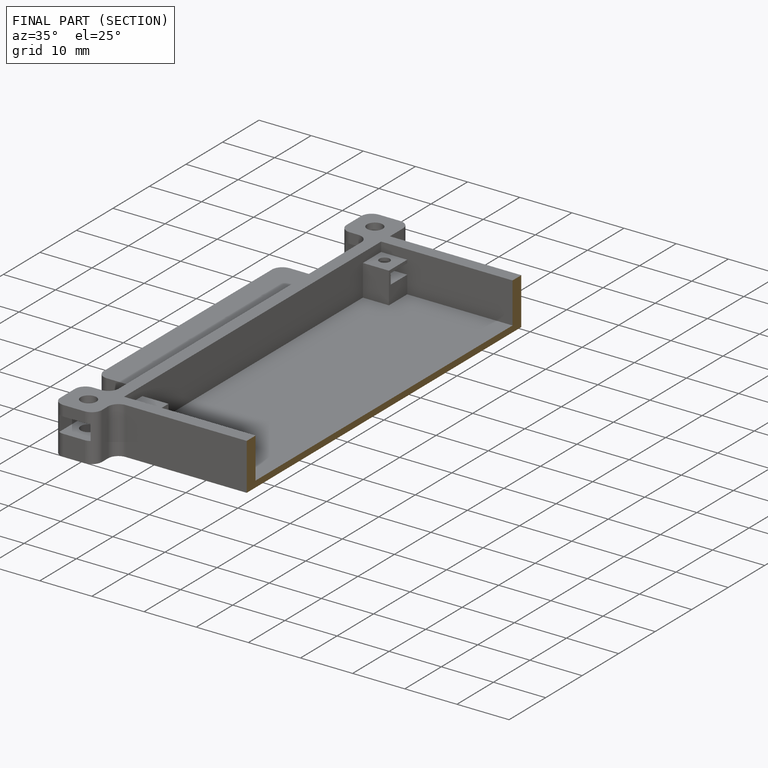
[diagram: finished part — half-section view (interior)]
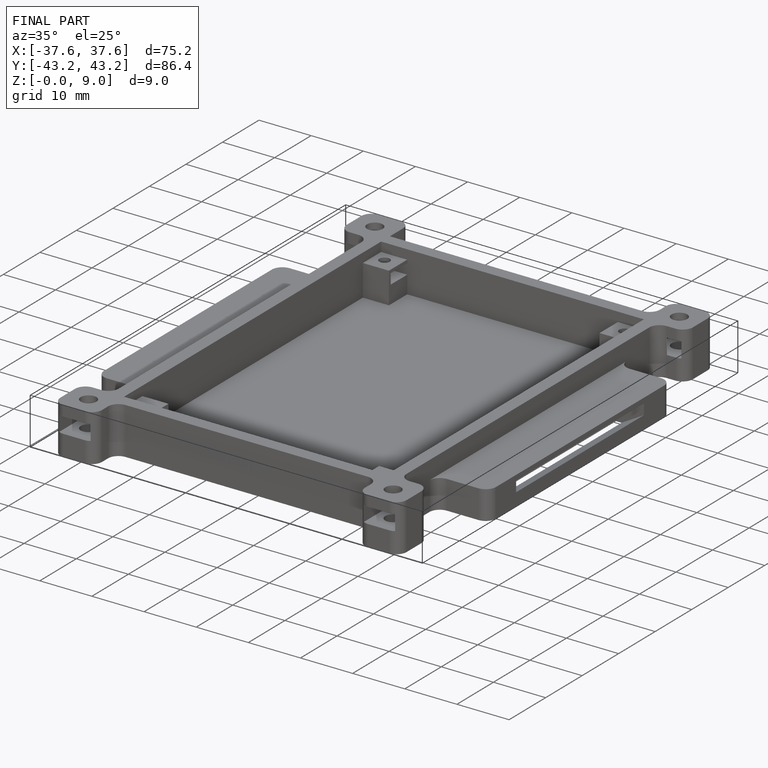
[diagram: finished part — iso view with bounding-box wireframe]
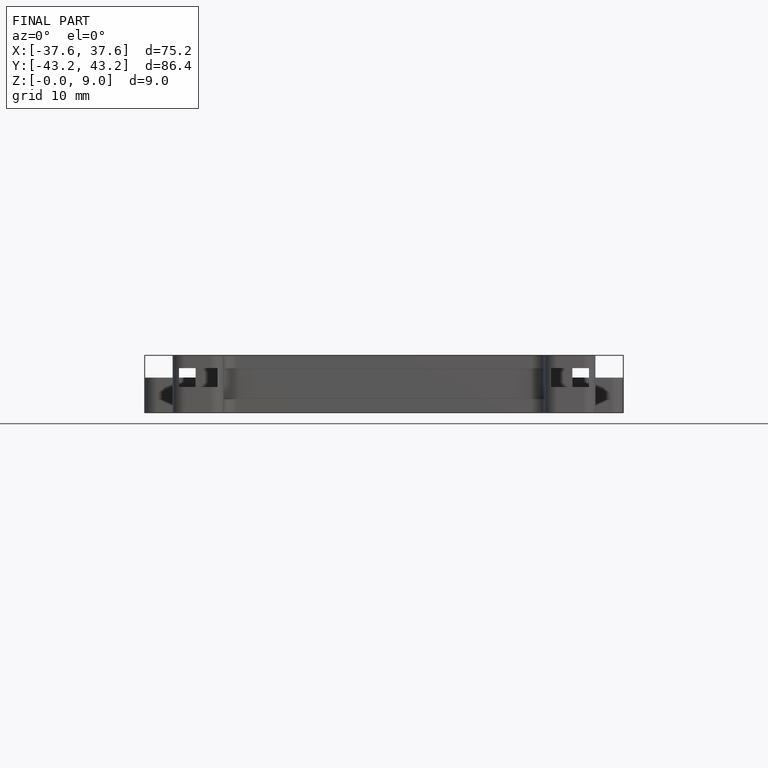
[diagram: finished part — front view with bounding-box wireframe]
